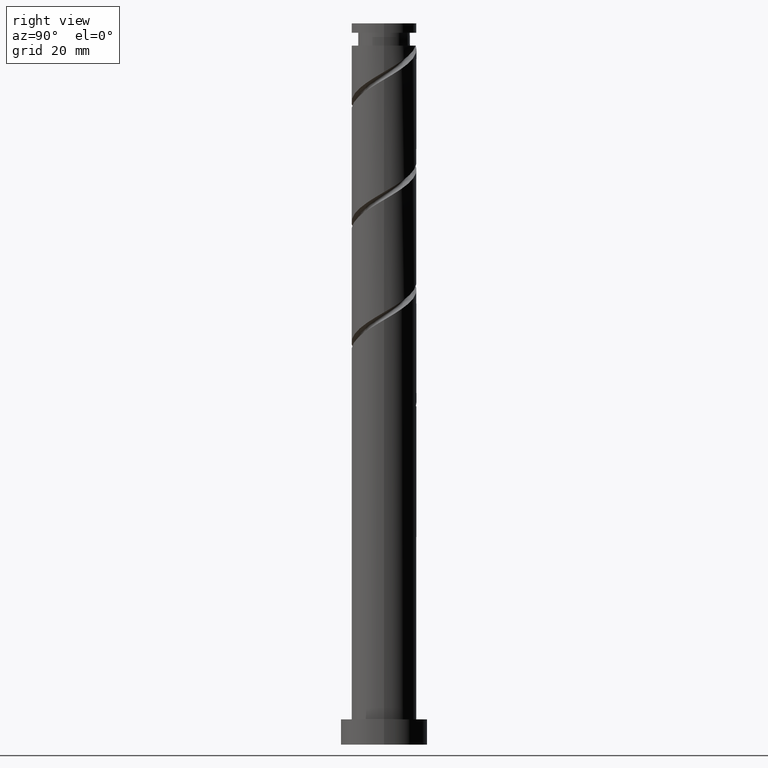
[diagram: clean part render]
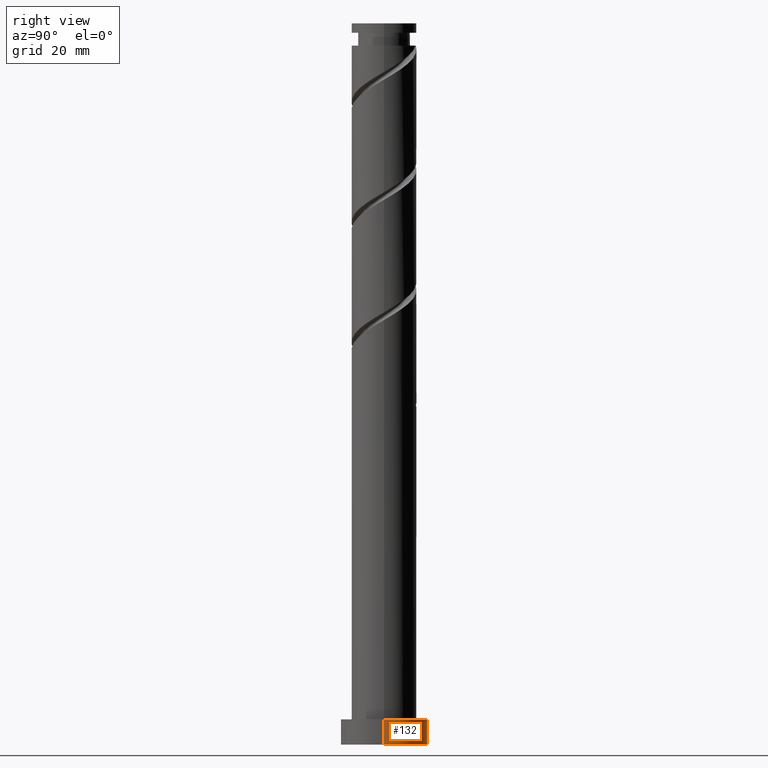
[diagram: same view with one face highlighted and labeled with its STEP entity id]
A machine part, right view. The second image highlights one B-rep face of the part: STEP entity #132.
In plain terms, the highlighted cylindrical surface (partial cylindrical patch) has radius 12 mm, axis along (-0, -0, -1).
Its self-contained STEP definition (entity closure, byte-faithful):
#45 = AXIS2_PLACEMENT_3D ( 'NONE', #178, #553, #852 ) ;
#96 = CIRCLE ( 'NONE', #209, 12.00000000000000178 ) ;
#132 = ADVANCED_FACE ( 'NONE', ( #1247 ), #1112, .T. ) ;
#146 = LINE ( 'NONE', #1639, #1225 ) ;
#178 = CARTESIAN_POINT ( 'NONE',  ( 0.000000000000000000, 0.000000000000000000, 0.000000000000000000 ) ) ;
#209 = AXIS2_PLACEMENT_3D ( 'NONE', #1658, #580, #326 ) ;
#232 = CARTESIAN_POINT ( 'NONE',  ( 12.00000000000000178, 1.469576158976824144E-15, 7.000000000000000000 ) ) ;
#296 = AXIS2_PLACEMENT_3D ( 'NONE', #445, #1397, #576 ) ;
#312 = CARTESIAN_POINT ( 'NONE',  ( -12.00000000000000178, 0.000000000000000000, 0.000000000000000000 ) ) ;
#325 = EDGE_LOOP ( 'NONE', ( #346, #634, #1444, #516 ) ) ;
#326 = DIRECTION ( 'NONE',  ( 1.000000000000000000, 0.000000000000000000, 0.000000000000000000 ) ) ;
#346 = ORIENTED_EDGE ( 'NONE', *, *, #1280, .F. ) ;
#429 = VERTEX_POINT ( 'NONE', #1596 ) ;
#430 = CARTESIAN_POINT ( 'NONE',  ( 12.00000000000000178, 1.469576158976824144E-15, 0.000000000000000000 ) ) ;
#445 = CARTESIAN_POINT ( 'NONE',  ( 0.000000000000000000, 0.000000000000000000, 7.000000000000000000 ) ) ;
#516 = ORIENTED_EDGE ( 'NONE', *, *, #938, .F. ) ;
#553 = DIRECTION ( 'NONE',  ( 0.000000000000000000, 0.000000000000000000, 1.000000000000000000 ) ) ;
#576 = DIRECTION ( 'NONE',  ( -1.000000000000000000, 0.000000000000000000, 0.000000000000000000 ) ) ;
#580 = DIRECTION ( 'NONE',  ( 0.000000000000000000, 0.000000000000000000, 1.000000000000000000 ) ) ;
#634 = ORIENTED_EDGE ( 'NONE', *, *, #1052, .T. ) ;
#655 = EDGE_CURVE ( 'NONE', #1003, #1695, #1230, .T. ) ;
#852 = DIRECTION ( 'NONE',  ( 1.000000000000000000, 0.000000000000000000, 0.000000000000000000 ) ) ;
#899 = DIRECTION ( 'NONE',  ( -0.000000000000000000, -0.000000000000000000, -1.000000000000000000 ) ) ;
#938 = EDGE_CURVE ( 'NONE', #429, #1695, #1574, .T. ) ;
#1003 = VERTEX_POINT ( 'NONE', #430 ) ;
#1052 = EDGE_CURVE ( 'NONE', #1558, #1003, #146, .T. ) ;
#1054 = DIRECTION ( 'NONE',  ( -0.000000000000000000, -0.000000000000000000, -1.000000000000000000 ) ) ;
#1112 = CYLINDRICAL_SURFACE ( 'NONE', #296, 12.00000000000000178 ) ;
#1225 = VECTOR ( 'NONE', #1054, 1000.000000000000000 ) ;
#1230 = CIRCLE ( 'NONE', #45, 12.00000000000000178 ) ;
#1247 = FACE_OUTER_BOUND ( 'NONE', #325, .T. ) ;
#1280 = EDGE_CURVE ( 'NONE', #1558, #429, #96, .T. ) ;
#1397 = DIRECTION ( 'NONE',  ( -0.000000000000000000, -0.000000000000000000, -1.000000000000000000 ) ) ;
#1422 = CARTESIAN_POINT ( 'NONE',  ( -12.00000000000000178, 0.000000000000000000, 7.000000000000000000 ) ) ;
#1444 = ORIENTED_EDGE ( 'NONE', *, *, #655, .T. ) ;
#1558 = VERTEX_POINT ( 'NONE', #232 ) ;
#1574 = LINE ( 'NONE', #1422, #1625 ) ;
#1596 = CARTESIAN_POINT ( 'NONE',  ( -12.00000000000000178, 0.000000000000000000, 7.000000000000000000 ) ) ;
#1625 = VECTOR ( 'NONE', #899, 1000.000000000000000 ) ;
#1639 = CARTESIAN_POINT ( 'NONE',  ( 12.00000000000000178, 1.469576158976824144E-15, 7.000000000000000000 ) ) ;
#1658 = CARTESIAN_POINT ( 'NONE',  ( 0.000000000000000000, 0.000000000000000000, 7.000000000000000000 ) ) ;
#1695 = VERTEX_POINT ( 'NONE', #312 ) ;